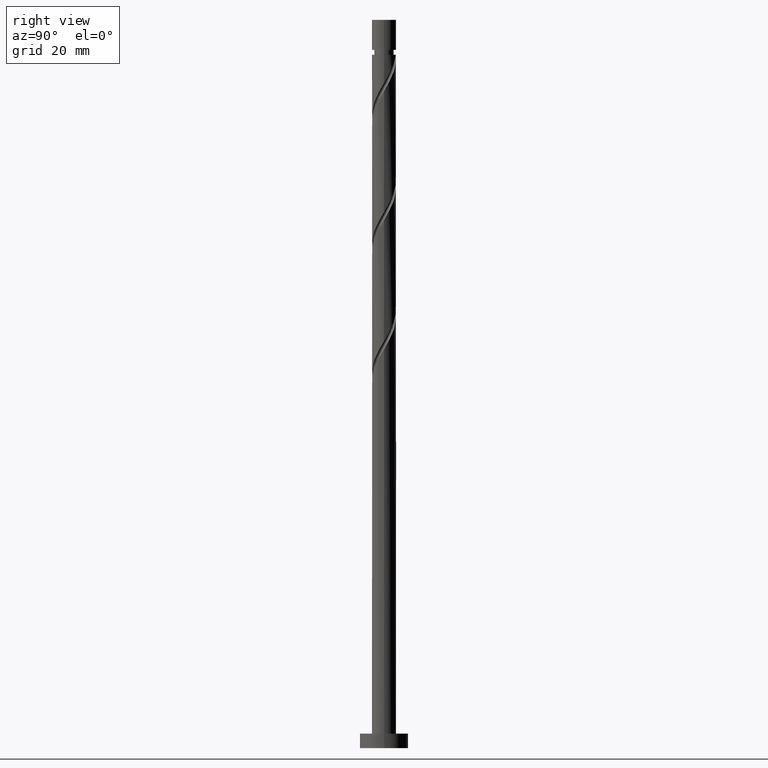
[diagram: clean part render]
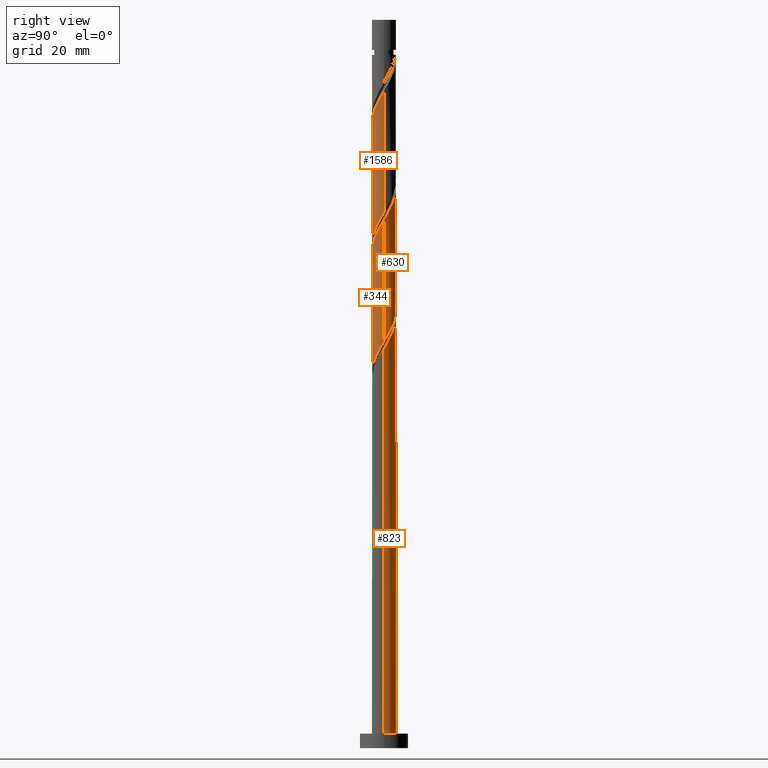
[diagram: same view with one multi-face feature highlighted, each face labeled with its STEP entity id]
A machine part, right view. The highlighted faces form ONE feature: a constant-radius fillet chain: 4 tangent blend faces with common blend radius 2.5 mm. The faces share edges in the B-rep.
Their STEP definitions:
[1] entity #1586 (Cylinder):
#6 = EDGE_LOOP ( 'NONE', ( #1232, #464, #1144, #79 ) ) ;
#70 = CARTESIAN_POINT ( 'NONE',  ( -0.1452368982656269403, -2.521528798126809967, 103.8980615199562578 ) ) ;
#79 = ORIENTED_EDGE ( 'NONE', *, *, #1563, .F. ) ;
#111 = CARTESIAN_POINT ( 'NONE',  ( -2.500000000000003553, -5.795768022604830805E-15, 122.4425464345947745 ) ) ;
#153 = CARTESIAN_POINT ( 'NONE',  ( 2.500000000000000444, 3.484939223914673654E-15, 110.8081220598632228 ) ) ;
#161 = CARTESIAN_POINT ( 'NONE',  ( -2.353996859965338917, -0.9153687888900168268, 99.04957667147137101 ) ) ;
#174 = EDGE_CURVE ( 'NONE', #691, #621, #502, .T. ) ;
#206 = CARTESIAN_POINT ( 'NONE',  ( -2.475193905018191920, -0.5026095591624449854, 123.2920009138956772 ) ) ;
#230 = CARTESIAN_POINT ( 'NONE',  ( 2.500000000000003109, -1.316200221907677803E-15, 135.7758797679281031 ) ) ;
#254 = CARTESIAN_POINT ( 'NONE',  ( 2.500000000000000000, 3.061616997868383141E-16, 150.5000000000000000 ) ) ;
#281 = CARTESIAN_POINT ( 'NONE',  ( -1.743088351060508412, -1.792105744758706098, 100.8677584896532409 ) ) ;
#308 = CARTESIAN_POINT ( 'NONE',  ( 2.021932029057389890, -1.470302985738608958, 108.1404857623805214 ) ) ;
#325 = CARTESIAN_POINT ( 'NONE',  ( -2.177375558832922664, -1.228428132125366279, 99.65563727753202272 ) ) ;
#338 = CARTESIAN_POINT ( 'NONE',  ( -0.5710429720501326578, -2.460307127265380256, 128.1404857623805071 ) ) ;
#350 = CARTESIAN_POINT ( 'NONE',  ( 2.353996859965343358, -0.9153687888900183811, 134.2010918229865695 ) ) ;
#389 = CARTESIAN_POINT ( 'NONE',  ( 1.810534374112176215, -1.761012923450274714, 107.5344251563198839 ) ) ;
#401 = CARTESIAN_POINT ( 'NONE',  ( 0.2129030368922517069, -2.490917962696093557, 104.5041221260168811 ) ) ;
#454 = CARTESIAN_POINT ( 'NONE',  ( -2.495863270706177417, -0.1437585960555965436, 122.6859403078350397 ) ) ;
#464 = ORIENTED_EDGE ( 'NONE', *, *, #1650, .F. ) ;
#475 = DIRECTION ( 'NONE',  ( -0.000000000000000000, -0.000000000000000000, -1.000000000000000000 ) ) ;
#481 = CARTESIAN_POINT ( 'NONE',  ( -2.233329684002606452, -1.179593048026944313, 124.5041221260168811 ) ) ;
#483 =( BOUNDED_CURVE ( )  B_SPLINE_CURVE ( 2, ( #153, #1100, #1053, #1565, #575, #1460, #308, #389, #1062, #524, #1602, #820, #401, #70, #922, #795, #1044, #958, #281, #1299, #325, #161, #1332, #951, #830 ),
 .UNSPECIFIED., .F., .T. ) 
 B_SPLINE_CURVE_WITH_KNOTS ( ( 3, 2, 2, 2, 2, 2, 2, 2, 2, 2, 2, 2, 3 ),
 ( 0.5545252162417511066, 0.5568181818181817677, 0.5681818181818182323, 0.5795454545454545858, 0.5909090909090909394, 0.6022727272727272929, 0.6136363636363636465, 0.6250000000000000000, 0.6363636363636363535, 0.6477272727272727071, 0.6590909090909090606, 0.6704545454545454142, 0.6795252162417514397 ),
 .UNSPECIFIED. ) 
 CURVE ( )  GEOMETRIC_REPRESENTATION_ITEM ( )  RATIONAL_B_SPLINE_CURVE ( ( 0.9061101570135579042, 0.9072237824201401235, 0.9090909090909178314, 0.8998376744372202918, 0.9090909090909178314, 0.8998376744372202918, 0.9090909090909178314, 0.8998376744372202918, 0.9090909090909178314, 0.8998376744372202918, 0.9090909090909178314, 0.8998376744372202918, 0.9090909090909178314, 0.8998376744372202918, 0.9090909090909178314, 0.8998376744372202918, 0.9090909090909178314, 0.8998376744372202918, 0.9090909090909178314, 0.8998376744372202918, 0.9090909090909178314, 0.8998376744372202918, 0.9090909090909178314, 0.9017048011079976666, 0.9061101570135583483 ) ) 
 REPRESENTATION_ITEM ( '' )  );
#493 = CARTESIAN_POINT ( 'NONE',  ( -2.500000000000003997, -0.07193881630955130391, 122.5646444393129713 ) ) ;
#502 = LINE ( 'NONE', #254, #1297 ) ;
#524 = CARTESIAN_POINT ( 'NONE',  ( 1.241060336893708094, -2.199766004962785182, 106.3223039441986515 ) ) ;
#575 = CARTESIAN_POINT ( 'NONE',  ( 2.354261794510395411, -0.8411013035946941496, 109.3526069745017253 ) ) ;
#589 = CARTESIAN_POINT ( 'NONE',  ( 0.4974937185533109263, -2.450000000000003286, 129.9586675805622917 ) ) ;
#604 = CARTESIAN_POINT ( 'NONE',  ( -1.525797355502945152, -1.980389464206532946, 126.3223039441986657 ) ) ;
#621 = VERTEX_POINT ( 'NONE', #1159 ) ;
#671 = FACE_OUTER_BOUND ( 'NONE', #6, .T. ) ;
#691 = VERTEX_POINT ( 'NONE', #1341 ) ;
#711 = CARTESIAN_POINT ( 'NONE',  ( -0.9060516544719220411, -2.330036566114083829, 127.5344251563199123 ) ) ;
#719 = CARTESIAN_POINT ( 'NONE',  ( -1.810534374112179323, -1.761012923450277601, 125.7162433381380851 ) ) ;
#795 = CARTESIAN_POINT ( 'NONE',  ( -0.8497505388409957172, -2.378471201873189500, 102.6859403078350539 ) ) ;
#801 = DIRECTION ( 'NONE',  ( -0.000000000000000000, -0.000000000000000000, -1.000000000000000000 ) ) ;
#820 = CARTESIAN_POINT ( 'NONE',  ( 0.5710429720501314366, -2.460307127265375815, 105.1101827320774618 ) ) ;
#824 = CARTESIAN_POINT ( 'NONE',  ( -2.500000000000003553, -5.795768022604830805E-15, 122.4425464345947887 ) ) ;
#826 = VECTOR ( 'NONE', #475, 1000.000000000000000 ) ;
#830 = CARTESIAN_POINT ( 'NONE',  ( -2.500000000000000444, 9.991156229935629260E-15, 97.47478872652988002 ) ) ;
#837 = DIRECTION ( 'NONE',  ( -0.000000000000000000, -0.000000000000000000, -1.000000000000000000 ) ) ;
#852 = CARTESIAN_POINT ( 'NONE',  ( 0.1452368982656260799, -2.521528798126814408, 129.3526069745017253 ) ) ;
#863 = CARTESIAN_POINT ( 'NONE',  ( 2.435264748179753358, -0.5652305779706354727, 134.8071524290471643 ) ) ;
#872 = CARTESIAN_POINT ( 'NONE',  ( -1.241060336893711424, -2.199766004962788735, 126.9283645502593032 ) ) ;
#922 = CARTESIAN_POINT ( 'NONE',  ( -0.4974937185533113704, -2.449999999999999734, 103.2920009138956488 ) ) ;
#951 = CARTESIAN_POINT ( 'NONE',  ( -2.500000000000000888, -0.2863223184628016504, 97.96074867950116527 ) ) ;
#958 = CARTESIAN_POINT ( 'NONE',  ( -1.485422444420509969, -2.042724014156698242, 101.4738190957138357 ) ) ;
#982 = CARTESIAN_POINT ( 'NONE',  ( 2.000754257700509076, -1.541487475360719062, 132.9889706108653513 ) ) ;
#1000 = CARTESIAN_POINT ( 'NONE',  ( -0.2129030368922531502, -2.490917962696097110, 128.7465463684410736 ) ) ;
#1001 = EDGE_CURVE ( 'NONE', #1132, #1295, #1306, .T. ) ;
#1044 = CARTESIAN_POINT ( 'NONE',  ( -1.167586491630752565, -2.210597608014943649, 102.0798797017744448 ) ) ;
#1053 = CARTESIAN_POINT ( 'NONE',  ( 2.495863270706175197, -0.1437585960555973208, 110.5647281866229292 ) ) ;
#1062 = CARTESIAN_POINT ( 'NONE',  ( 1.525797355502941821, -1.980389464206530281, 106.9283645502592748 ) ) ;
#1100 = CARTESIAN_POINT ( 'NONE',  ( 2.500000000000000444, -0.07193881630955158146, 110.6860240551449976 ) ) ;
#1107 = CARTESIAN_POINT ( 'NONE',  ( 1.743088351060510188, -1.792105744758709429, 132.3829100048046996 ) ) ;
#1132 = VERTEX_POINT ( 'NONE', #824 ) ;
#1144 = ORIENTED_EDGE ( 'NONE', *, *, #1001, .T. ) ;
#1159 = CARTESIAN_POINT ( 'NONE',  ( 2.500000000000000444, 3.484939223914673654E-15, 110.8081220598632228 ) ) ;
#1166 =( BOUNDED_CURVE ( )  B_SPLINE_CURVE ( 2, ( #111, #493, #454, #206, #1640, #481, #1373, #719, #604, #872, #711, #338, #1000, #852, #589, #1364, #1244, #1514, #1107, #982, #1522, #350, #863, #1230, #230 ),
 .UNSPECIFIED., .F., .T. ) 
 B_SPLINE_CURVE_WITH_KNOTS ( ( 3, 2, 2, 2, 2, 2, 2, 2, 2, 2, 2, 2, 3 ),
 ( 0.5545252162417512176, 0.5568181818181818787, 0.5681818181818181213, 0.5795454545454545858, 0.5909090909090908283, 0.6022727272727272929, 0.6136363636363636465, 0.6250000000000000000, 0.6363636363636363535, 0.6477272727272727071, 0.6590909090909091717, 0.6704545454545454142, 0.6795252162417513286 ),
 .UNSPECIFIED. ) 
 CURVE ( )  GEOMETRIC_REPRESENTATION_ITEM ( )  RATIONAL_B_SPLINE_CURVE ( ( 0.9061101570135647876, 0.9072237824201470069, 0.9090909090909247148, 0.8998376744372269531, 0.9090909090909247148, 0.8998376744372269531, 0.9090909090909247148, 0.8998376744372269531, 0.9090909090909247148, 0.8998376744372269531, 0.9090909090909247148, 0.8998376744372269531, 0.9090909090909247148, 0.8998376744372269531, 0.9090909090909247148, 0.8998376744372269531, 0.9090909090909247148, 0.8998376744372269531, 0.9090909090909247148, 0.8998376744372269531, 0.9090909090909247148, 0.8998376744372269531, 0.9090909090909247148, 0.9017048011080045500, 0.9061101570135650096 ) ) 
 REPRESENTATION_ITEM ( '' )  );
#1185 = CYLINDRICAL_SURFACE ( 'NONE', #1386, 2.500000000000000000 ) ;
#1230 = CARTESIAN_POINT ( 'NONE',  ( 2.500000000000003553, -0.2863223184628089779, 135.2899198149568178 ) ) ;
#1232 = ORIENTED_EDGE ( 'NONE', *, *, #174, .F. ) ;
#1244 = CARTESIAN_POINT ( 'NONE',  ( 1.167586491630753454, -2.210597608014947202, 131.1707887926835383 ) ) ;
#1295 = VERTEX_POINT ( 'NONE', #1367 ) ;
#1297 = VECTOR ( 'NONE', #801, 1000.000000000000000 ) ;
#1299 = CARTESIAN_POINT ( 'NONE',  ( -2.000754257700505967, -1.541487475360714621, 100.2616978835926318 ) ) ;
#1306 = LINE ( 'NONE', #1630, #826 ) ;
#1332 = CARTESIAN_POINT ( 'NONE',  ( -2.435264748179748917, -0.5652305779706338074, 98.44351606541080457 ) ) ;
#1341 = CARTESIAN_POINT ( 'NONE',  ( 2.500000000000003109, -1.316200221907677803E-15, 135.7758797679281031 ) ) ;
#1342 = DIRECTION ( 'NONE',  ( -1.000000000000000000, 0.000000000000000000, 0.000000000000000000 ) ) ;
#1364 = CARTESIAN_POINT ( 'NONE',  ( 0.8497505388409963833, -2.378471201873193941, 130.5647281866229434 ) ) ;
#1367 = CARTESIAN_POINT ( 'NONE',  ( -2.500000000000000444, 9.991156229935629260E-15, 97.47478872652988002 ) ) ;
#1373 = CARTESIAN_POINT ( 'NONE',  ( -2.021932029057392555, -1.470302985738610735, 125.1101827320774476 ) ) ;
#1386 = AXIS2_PLACEMENT_3D ( 'NONE', #1470, #837, #1342 ) ;
#1460 = CARTESIAN_POINT ( 'NONE',  ( 2.233329684002602455, -1.179593048026942759, 108.7465463684411020 ) ) ;
#1470 = CARTESIAN_POINT ( 'NONE',  ( 0.000000000000000000, 0.000000000000000000, 150.5000000000000000 ) ) ;
#1514 = CARTESIAN_POINT ( 'NONE',  ( 1.485422444420512189, -2.042724014156700907, 131.7768493987441332 ) ) ;
#1522 = CARTESIAN_POINT ( 'NONE',  ( 2.177375558832926217, -1.228428132125369387, 133.5950312169259178 ) ) ;
#1563 = EDGE_CURVE ( 'NONE', #621, #1295, #483, .T. ) ;
#1565 = CARTESIAN_POINT ( 'NONE',  ( 2.475193905018188367, -0.5026095591624450964, 109.9586675805623059 ) ) ;
#1586 = ADVANCED_FACE ( 'NONE', ( #671 ), #1185, .T. ) ;
#1602 = CARTESIAN_POINT ( 'NONE',  ( 0.9060516544719195986, -2.330036566114080276, 105.7162433381380708 ) ) ;
#1630 = CARTESIAN_POINT ( 'NONE',  ( -2.500000000000000000, 0.000000000000000000, 150.5000000000000000 ) ) ;
#1640 = CARTESIAN_POINT ( 'NONE',  ( -2.354261794510398964, -0.8411013035946942606, 123.8980615199562436 ) ) ;
#1650 = EDGE_CURVE ( 'NONE', #1132, #691, #1166, .T. ) ;
[2] entity #630 (Cylinder):
#13 = CYLINDRICAL_SURFACE ( 'NONE', #1021, 2.500000000000000000 ) ;
#19 = CARTESIAN_POINT ( 'NONE',  ( -1.241060336893708538, 2.199766004962784738, 92.98897061086537974 ) ) ;
#29 = CARTESIAN_POINT ( 'NONE',  ( 2.500000000000000444, 3.484939223914673654E-15, 84.14145539319656564 ) ) ;
#61 = CARTESIAN_POINT ( 'NONE',  ( 2.353996859965339805, 0.9153687888900154945, 85.71624333813808505 ) ) ;
#78 = CARTESIAN_POINT ( 'NONE',  ( -2.435264748179753358, 0.5652305779706355837, 121.4738190957138215 ) ) ;
#103 = CARTESIAN_POINT ( 'NONE',  ( 0.2129030368922534833, 2.490917962696097554, 115.4132130351077734 ) ) ;
#128 = ORIENTED_EDGE ( 'NONE', *, *, #409, .T. ) ;
#145 = CARTESIAN_POINT ( 'NONE',  ( -0.9060516544719195986, 2.330036566114080276, 92.38291000480478488 ) ) ;
#185 = VECTOR ( 'NONE', #480, 1000.000000000000000 ) ;
#194 = CARTESIAN_POINT ( 'NONE',  ( 1.167586491630753009, 2.210597608014943205, 88.74654636844113043 ) ) ;
#217 = CARTESIAN_POINT ( 'NONE',  ( 1.810534374112180434, 1.761012923450276935, 112.3829100048047138 ) ) ;
#236 = CARTESIAN_POINT ( 'NONE',  ( -2.353996859965342914, 0.9153687888900192693, 120.8677584896532551 ) ) ;
#263 = CARTESIAN_POINT ( 'NONE',  ( 2.500000000000003109, 2.191174233062213370E-15, 109.1092131012614317 ) ) ;
#274 = CARTESIAN_POINT ( 'NONE',  ( -0.2129030368922524008, 2.490917962696093557, 91.17078879268353830 ) ) ;
#277 = CARTESIAN_POINT ( 'NONE',  ( 0.000000000000000000, 0.000000000000000000, 150.5000000000000000 ) ) ;
#317 = CARTESIAN_POINT ( 'NONE',  ( 2.177375558832922220, 1.228428132125366723, 86.32230394419867991 ) ) ;
#343 = CARTESIAN_POINT ( 'NONE',  ( -1.485422444420512189, 2.042724014156701351, 118.4435160654108330 ) ) ;
#359 = CARTESIAN_POINT ( 'NONE',  ( -1.743088351060510188, 1.792105744758709429, 119.0495766714713994 ) ) ;
#409 = EDGE_CURVE ( 'NONE', #1515, #1049, #1485, .T. ) ;
#430 = CARTESIAN_POINT ( 'NONE',  ( 0.8497505388409958282, 2.378471201873189056, 89.35260697450166845 ) ) ;
#440 = CARTESIAN_POINT ( 'NONE',  ( 1.743088351060507524, 1.792105744758706543, 87.53442515631989806 ) ) ;
#446 = CARTESIAN_POINT ( 'NONE',  ( 0.4974937185533115924, 2.449999999999999734, 89.95866758056232015 ) ) ;
#463 = CARTESIAN_POINT ( 'NONE',  ( 2.233329684002606896, 1.179593048026943647, 111.1707887926835099 ) ) ;
#475 = DIRECTION ( 'NONE',  ( -0.000000000000000000, -0.000000000000000000, -1.000000000000000000 ) ) ;
#480 = DIRECTION ( 'NONE',  ( -0.000000000000000000, -0.000000000000000000, -1.000000000000000000 ) ) ;
#510 = DIRECTION ( 'NONE',  ( -1.000000000000000000, 0.000000000000000000, 0.000000000000000000 ) ) ;
#532 = CARTESIAN_POINT ( 'NONE',  ( 2.500000000000000444, 0.2863223184628042595, 84.62741534616783667 ) ) ;
#543 = CARTESIAN_POINT ( 'NONE',  ( 2.500000000000003997, 0.07193881630954691853, 109.2313111059796427 ) ) ;
#582 = CARTESIAN_POINT ( 'NONE',  ( -2.475193905018188367, 0.5026095591624447634, 96.62533424722896314 ) ) ;
#610 = CARTESIAN_POINT ( 'NONE',  ( 0.9060516544719209309, 2.330036566114084273, 114.2010918229865553 ) ) ;
#620 = CARTESIAN_POINT ( 'NONE',  ( 2.021932029057392999, 1.470302985738610069, 111.7768493987441332 ) ) ;
#630 = ADVANCED_FACE ( 'NONE', ( #769 ), #13, .T. ) ;
#660 = CARTESIAN_POINT ( 'NONE',  ( 0.1452368982656262741, 2.521528798126809967, 90.56472818662290081 ) ) ;
#696 = CARTESIAN_POINT ( 'NONE',  ( 2.354261794510398964, 0.8411013035946940386, 110.5647281866229150 ) ) ;
#702 = CARTESIAN_POINT ( 'NONE',  ( 2.495863270706177417, 0.1437585960555962661, 109.3526069745017253 ) ) ;
#741 = CARTESIAN_POINT ( 'NONE',  ( -0.1452368982656258023, 2.521528798126814408, 116.0192736411683967 ) ) ;
#761 = EDGE_LOOP ( 'NONE', ( #892, #128, #1418, #1040 ) ) ;
#769 = FACE_OUTER_BOUND ( 'NONE', #761, .T. ) ;
#775 = CARTESIAN_POINT ( 'NONE',  ( -2.500000000000000000, 0.07193881630956162898, 97.35269072181166905 ) ) ;
#786 = CARTESIAN_POINT ( 'NONE',  ( 2.435264748179749805, 0.5652305779706332522, 85.11018273207747598 ) ) ;
#824 = CARTESIAN_POINT ( 'NONE',  ( -2.500000000000003553, -5.795768022604830805E-15, 122.4425464345947887 ) ) ;
#826 = VECTOR ( 'NONE', #475, 1000.000000000000000 ) ;
#892 = ORIENTED_EDGE ( 'NONE', *, *, #1603, .F. ) ;
#966 = CARTESIAN_POINT ( 'NONE',  ( -1.810534374112175993, 1.761012923450275158, 94.20109182298656947 ) ) ;
#981 = CARTESIAN_POINT ( 'NONE',  ( 2.500000000000000000, 3.061616997868383141E-16, 150.5000000000000000 ) ) ;
#992 = CARTESIAN_POINT ( 'NONE',  ( -2.177375558832926217, 1.228428132125368499, 120.2616978835926176 ) ) ;
#995 =( BOUNDED_CURVE ( )  B_SPLINE_CURVE ( 2, ( #1411, #775, #1432, #582, #1609, #1092, #1424, #966, #1173, #19, #145, #1164, #274, #660, #446, #430, #194, #1478, #440, #1577, #317, #61, #786, #532, #29 ),
 .UNSPECIFIED., .F., .T. ) 
 B_SPLINE_CURVE_WITH_KNOTS ( ( 3, 2, 2, 2, 2, 2, 2, 2, 2, 2, 2, 2, 3 ),
 ( 0.6795252162417514397, 0.6818181818181817677, 0.6931818181818182323, 0.7045454545454545858, 0.7159090909090909394, 0.7272727272727272929, 0.7386363636363636465, 0.7500000000000000000, 0.7613636363636363535, 0.7727272727272727071, 0.7840909090909090606, 0.7954545454545454142, 0.8045252162417513286 ),
 .UNSPECIFIED. ) 
 CURVE ( )  GEOMETRIC_REPRESENTATION_ITEM ( )  RATIONAL_B_SPLINE_CURVE ( ( 0.9061101570135583483, 0.9072237824201404566, 0.9090909090909178314, 0.8998376744372202918, 0.9090909090909178314, 0.8998376744372202918, 0.9090909090909178314, 0.8998376744372202918, 0.9090909090909178314, 0.8998376744372202918, 0.9090909090909178314, 0.8998376744372202918, 0.9090909090909178314, 0.8998376744372202918, 0.9090909090909178314, 0.8998376744372202918, 0.9090909090909178314, 0.8998376744372202918, 0.9090909090909178314, 0.8998376744372202918, 0.9090909090909178314, 0.8998376744372202918, 0.9090909090909178314, 0.9017048011079977776, 0.9061101570135583483 ) ) 
 REPRESENTATION_ITEM ( '' )  );
#1001 = EDGE_CURVE ( 'NONE', #1132, #1295, #1306, .T. ) ;
#1008 = CARTESIAN_POINT ( 'NONE',  ( 0.5710429720501329909, 2.460307127265380256, 114.8071524290471785 ) ) ;
#1021 = AXIS2_PLACEMENT_3D ( 'NONE', #277, #1027, #510 ) ;
#1027 = DIRECTION ( 'NONE',  ( -0.000000000000000000, -0.000000000000000000, -1.000000000000000000 ) ) ;
#1040 = ORIENTED_EDGE ( 'NONE', *, *, #1001, .F. ) ;
#1049 = VERTEX_POINT ( 'NONE', #1624 ) ;
#1092 = CARTESIAN_POINT ( 'NONE',  ( -2.233329684002602455, 1.179593048026942981, 95.41321303510777341 ) ) ;
#1132 = VERTEX_POINT ( 'NONE', #824 ) ;
#1137 = CARTESIAN_POINT ( 'NONE',  ( 1.525797355502944486, 1.980389464206532946, 112.9889706108653229 ) ) ;
#1164 = CARTESIAN_POINT ( 'NONE',  ( -0.5710429720501312145, 2.460307127265375371, 91.77684939874411896 ) ) ;
#1173 = CARTESIAN_POINT ( 'NONE',  ( -1.525797355502942043, 1.980389464206530281, 93.59503121692596039 ) ) ;
#1216 = CARTESIAN_POINT ( 'NONE',  ( 2.475193905018191920, 0.5026095591624447634, 109.9586675805623344 ) ) ;
#1221 = CARTESIAN_POINT ( 'NONE',  ( -0.4974937185533107042, 2.450000000000003286, 116.6253342472289631 ) ) ;
#1237 = CARTESIAN_POINT ( 'NONE',  ( -2.500000000000003553, -5.795768022604830805E-15, 122.4425464345947745 ) ) ;
#1295 = VERTEX_POINT ( 'NONE', #1367 ) ;
#1306 = LINE ( 'NONE', #1630, #826 ) ;
#1356 = CARTESIAN_POINT ( 'NONE',  ( 1.241060336893710314, 2.199766004962788735, 113.5950312169259746 ) ) ;
#1367 = CARTESIAN_POINT ( 'NONE',  ( -2.500000000000000444, 9.991156229935629260E-15, 97.47478872652988002 ) ) ;
#1411 = CARTESIAN_POINT ( 'NONE',  ( -2.500000000000000444, 9.991156229935629260E-15, 97.47478872652988002 ) ) ;
#1418 = ORIENTED_EDGE ( 'NONE', *, *, #1534, .F. ) ;
#1424 = CARTESIAN_POINT ( 'NONE',  ( -2.021932029057389890, 1.470302985738608958, 94.80715242904716433 ) ) ;
#1432 = CARTESIAN_POINT ( 'NONE',  ( -2.495863270706175197, 0.1437585960555969877, 97.23139485328962905 ) ) ;
#1478 = CARTESIAN_POINT ( 'NONE',  ( 1.485422444420510191, 2.042724014156697798, 88.14048576238050714 ) ) ;
#1485 = LINE ( 'NONE', #981, #185 ) ;
#1486 = CARTESIAN_POINT ( 'NONE',  ( -2.000754257700509520, 1.541487475360718618, 119.6556372775320369 ) ) ;
#1506 = CARTESIAN_POINT ( 'NONE',  ( -0.8497505388409966054, 2.378471201873193497, 117.2313948532896006 ) ) ;
#1515 = VERTEX_POINT ( 'NONE', #263 ) ;
#1534 = EDGE_CURVE ( 'NONE', #1295, #1049, #995, .T. ) ;
#1555 = CARTESIAN_POINT ( 'NONE',  ( 2.500000000000003109, 2.191174233062213370E-15, 109.1092131012614317 ) ) ;
#1577 = CARTESIAN_POINT ( 'NONE',  ( 2.000754257700505523, 1.541487475360715509, 86.92836455025927478 ) ) ;
#1589 =( BOUNDED_CURVE ( )  B_SPLINE_CURVE ( 2, ( #1555, #543, #702, #1216, #696, #463, #620, #217, #1137, #1356, #610, #1008, #103, #741, #1221, #1506, #1616, #343, #359, #1486, #992, #236, #78, #1649, #1237 ),
 .UNSPECIFIED., .F., .T. ) 
 B_SPLINE_CURVE_WITH_KNOTS ( ( 3, 2, 2, 2, 2, 2, 2, 2, 2, 2, 2, 2, 3 ),
 ( 0.4295252162417509956, 0.4318181818181817677, 0.4431818181818182323, 0.4545454545454545858, 0.4659090909090909394, 0.4772727272727272929, 0.4886363636363636465, 0.5000000000000000000, 0.5113636363636363535, 0.5227272727272727071, 0.5340909090909091717, 0.5454545454545454142, 0.5545252162417512176 ),
 .UNSPECIFIED. ) 
 CURVE ( )  GEOMETRIC_REPRESENTATION_ITEM ( )  RATIONAL_B_SPLINE_CURVE ( ( 0.9061101570135647876, 0.9072237824201470069, 0.9090909090909247148, 0.8998376744372269531, 0.9090909090909247148, 0.8998376744372269531, 0.9090909090909247148, 0.8998376744372269531, 0.9090909090909247148, 0.8998376744372269531, 0.9090909090909247148, 0.8998376744372269531, 0.9090909090909247148, 0.8998376744372269531, 0.9090909090909247148, 0.8998376744372269531, 0.9090909090909247148, 0.8998376744372269531, 0.9090909090909247148, 0.8998376744372269531, 0.9090909090909247148, 0.8998376744372269531, 0.9090909090909247148, 0.9017048011080046610, 0.9061101570135647876 ) ) 
 REPRESENTATION_ITEM ( '' )  );
#1603 = EDGE_CURVE ( 'NONE', #1515, #1132, #1589, .T. ) ;
#1609 = CARTESIAN_POINT ( 'NONE',  ( -2.354261794510395855, 0.8411013035946938166, 96.01927364116838248 ) ) ;
#1616 = CARTESIAN_POINT ( 'NONE',  ( -1.167586491630754342, 2.210597608014947202, 117.8374554593502097 ) ) ;
#1624 = CARTESIAN_POINT ( 'NONE',  ( 2.500000000000000444, 3.484939223914673654E-15, 84.14145539319656564 ) ) ;
#1630 = CARTESIAN_POINT ( 'NONE',  ( -2.500000000000000000, 0.000000000000000000, 150.5000000000000000 ) ) ;
#1649 = CARTESIAN_POINT ( 'NONE',  ( -2.500000000000002665, 0.2863223184628125306, 121.9565864816234608 ) ) ;
[3] entity #344 (Cylinder):
#23 = CARTESIAN_POINT ( 'NONE',  ( -1.810534374112179323, -1.761012923450277601, 99.04957667147138523 ) ) ;
#27 = CARTESIAN_POINT ( 'NONE',  ( -2.500000000000000444, 9.991156229935629260E-15, 70.80812205986319441 ) ) ;
#34 = CARTESIAN_POINT ( 'NONE',  ( 0.1452368982656260799, -2.521528798126814408, 102.6859403078350397 ) ) ;
#48 = EDGE_CURVE ( 'NONE', #1049, #150, #201, .T. ) ;
#90 = ORIENTED_EDGE ( 'NONE', *, *, #409, .F. ) ;
#105 = CARTESIAN_POINT ( 'NONE',  ( 2.500000000000000444, 3.484939223914673654E-15, 84.14145539319656564 ) ) ;
#126 = CARTESIAN_POINT ( 'NONE',  ( 1.743088351060510188, -1.792105744758709429, 105.7162433381380708 ) ) ;
#150 = VERTEX_POINT ( 'NONE', #1661 ) ;
#172 = LINE ( 'NONE', #682, #1080 ) ;
#185 = VECTOR ( 'NONE', #480, 1000.000000000000000 ) ;
#201 =( BOUNDED_CURVE ( )  B_SPLINE_CURVE ( 2, ( #105, #224, #1375, #730, #237, #484, #1239, #361, #605, #1123, #1629, #1253, #472, #994, #1509, #345, #866, #752, #737, #1245, #1002, #885, #1542, #388, #27 ),
 .UNSPECIFIED., .F., .T. ) 
 B_SPLINE_CURVE_WITH_KNOTS ( ( 3, 2, 2, 2, 2, 2, 2, 2, 2, 2, 2, 2, 3 ),
 ( 0.8045252162417513286, 0.8068181818181817677, 0.8181818181818182323, 0.8295454545454545858, 0.8409090909090909394, 0.8522727272727272929, 0.8636363636363636465, 0.8750000000000000000, 0.8863636363636363535, 0.8977272727272727071, 0.9090909090909090606, 0.9204545454545454142, 0.9295252162417513286 ),
 .UNSPECIFIED. ) 
 CURVE ( )  GEOMETRIC_REPRESENTATION_ITEM ( )  RATIONAL_B_SPLINE_CURVE ( ( 0.9061101570135583483, 0.9072237824201403456, 0.9090909090909178314, 0.8998376744372202918, 0.9090909090909178314, 0.8998376744372202918, 0.9090909090909178314, 0.8998376744372202918, 0.9090909090909178314, 0.8998376744372202918, 0.9090909090909178314, 0.8998376744372202918, 0.9090909090909178314, 0.8998376744372202918, 0.9090909090909178314, 0.8998376744372202918, 0.9090909090909178314, 0.8998376744372202918, 0.9090909090909178314, 0.8998376744372202918, 0.9090909090909178314, 0.8998376744372202918, 0.9090909090909178314, 0.9017048011079977776, 0.9061101570135583483 ) ) 
 REPRESENTATION_ITEM ( '' )  );
#205 = CYLINDRICAL_SURFACE ( 'NONE', #1182, 2.500000000000000000 ) ;
#224 = CARTESIAN_POINT ( 'NONE',  ( 2.500000000000000444, -0.07193881630955856199, 84.01935738847834045 ) ) ;
#237 = CARTESIAN_POINT ( 'NONE',  ( 2.354261794510395411, -0.8411013035946941496, 82.68594030783505389 ) ) ;
#251 = CARTESIAN_POINT ( 'NONE',  ( -2.495863270706177417, -0.1437585960555965436, 96.01927364116838248 ) ) ;
#263 = CARTESIAN_POINT ( 'NONE',  ( 2.500000000000003109, 2.191174233062213370E-15, 109.1092131012614317 ) ) ;
#268 = CARTESIAN_POINT ( 'NONE',  ( 2.000754257700509076, -1.541487475360719062, 106.3223039441986657 ) ) ;
#332 = EDGE_LOOP ( 'NONE', ( #90, #471, #549, #771 ) ) ;
#344 = ADVANCED_FACE ( 'NONE', ( #1347 ), #205, .T. ) ;
#345 = CARTESIAN_POINT ( 'NONE',  ( -0.8497505388409957172, -2.378471201873189500, 76.01927364116838248 ) ) ;
#361 = CARTESIAN_POINT ( 'NONE',  ( 1.810534374112176215, -1.761012923450274714, 80.86775848965319824 ) ) ;
#383 = CARTESIAN_POINT ( 'NONE',  ( -2.500000000000003109, -0.07193881630956454332, 95.89797777264634249 ) ) ;
#388 = CARTESIAN_POINT ( 'NONE',  ( -2.499999999999999556, -0.2863223184628050366, 71.29408201283447966 ) ) ;
#405 = CARTESIAN_POINT ( 'NONE',  ( -0.9060516544719220411, -2.330036566114083829, 100.8677584896532267 ) ) ;
#409 = EDGE_CURVE ( 'NONE', #1515, #1049, #1485, .T. ) ;
#453 = DIRECTION ( 'NONE',  ( -0.000000000000000000, -0.000000000000000000, -1.000000000000000000 ) ) ;
#462 = DIRECTION ( 'NONE',  ( -1.000000000000000000, 0.000000000000000000, 0.000000000000000000 ) ) ;
#471 = ORIENTED_EDGE ( 'NONE', *, *, #561, .F. ) ;
#472 = CARTESIAN_POINT ( 'NONE',  ( 0.2129030368922517069, -2.490917962696093557, 77.83745545935019550 ) ) ;
#480 = DIRECTION ( 'NONE',  ( -0.000000000000000000, -0.000000000000000000, -1.000000000000000000 ) ) ;
#484 = CARTESIAN_POINT ( 'NONE',  ( 2.233329684002602455, -1.179593048026942759, 82.07987970177441639 ) ) ;
#527 = CARTESIAN_POINT ( 'NONE',  ( 2.500000000000001776, -0.2863223184628164719, 108.6232531482901038 ) ) ;
#538 = CARTESIAN_POINT ( 'NONE',  ( 2.435264748179753358, -0.5652305779706354727, 108.1404857623805071 ) ) ;
#549 = ORIENTED_EDGE ( 'NONE', *, *, #853, .T. ) ;
#561 = EDGE_CURVE ( 'NONE', #1019, #1515, #721, .T. ) ;
#585 = CARTESIAN_POINT ( 'NONE',  ( -2.500000000000003109, -2.295871977986687745E-15, 95.77587976792811730 ) ) ;
#605 = CARTESIAN_POINT ( 'NONE',  ( 1.525797355502941821, -1.980389464206530281, 80.26169788359263180 ) ) ;
#628 = CARTESIAN_POINT ( 'NONE',  ( -2.021932029057392555, -1.470302985738610735, 98.44351606541077615 ) ) ;
#636 = CARTESIAN_POINT ( 'NONE',  ( -1.525797355502945152, -1.980389464206532946, 99.65563727753199430 ) ) ;
#654 = CARTESIAN_POINT ( 'NONE',  ( 0.4974937185533109263, -2.450000000000003286, 103.2920009138956488 ) ) ;
#664 = CARTESIAN_POINT ( 'NONE',  ( -2.475193905018191920, -0.5026095591624449854, 96.62533424722899156 ) ) ;
#682 = CARTESIAN_POINT ( 'NONE',  ( -2.500000000000000000, 0.000000000000000000, 150.5000000000000000 ) ) ;
#721 =( BOUNDED_CURVE ( )  B_SPLINE_CURVE ( 2, ( #1168, #383, #251, #664, #891, #897, #628, #23, #636, #1396, #405, #1142, #1405, #34, #654, #1264, #1293, #1416, #126, #268, #1150, #1176, #538, #527, #779 ),
 .UNSPECIFIED., .F., .T. ) 
 B_SPLINE_CURVE_WITH_KNOTS ( ( 3, 2, 2, 2, 2, 2, 2, 2, 2, 2, 2, 2, 3 ),
 ( 0.3045252162417515507, 0.3068181818181817677, 0.3181818181818182323, 0.3295454545454545858, 0.3409090909090909394, 0.3522727272727272929, 0.3636363636363636465, 0.3750000000000000000, 0.3863636363636363535, 0.3977272727272727071, 0.4090909090909090606, 0.4204545454545454142, 0.4295252162417509956 ),
 .UNSPECIFIED. ) 
 CURVE ( )  GEOMETRIC_REPRESENTATION_ITEM ( )  RATIONAL_B_SPLINE_CURVE ( ( 0.9061101570135652317, 0.9072237824201474510, 0.9090909090909247148, 0.8998376744372269531, 0.9090909090909247148, 0.8998376744372269531, 0.9090909090909247148, 0.8998376744372269531, 0.9090909090909247148, 0.8998376744372269531, 0.9090909090909247148, 0.8998376744372269531, 0.9090909090909247148, 0.8998376744372269531, 0.9090909090909247148, 0.8998376744372269531, 0.9090909090909247148, 0.8998376744372269531, 0.9090909090909247148, 0.8998376744372269531, 0.9090909090909247148, 0.8998376744372269531, 0.9090909090909247148, 0.9017048011080046610, 0.9061101570135647876 ) ) 
 REPRESENTATION_ITEM ( '' )  );
#730 = CARTESIAN_POINT ( 'NONE',  ( 2.475193905018188367, -0.5026095591624450964, 83.29200091389566296 ) ) ;
#737 = CARTESIAN_POINT ( 'NONE',  ( -1.743088351060508412, -1.792105744758706098, 74.20109182298656947 ) ) ;
#752 = CARTESIAN_POINT ( 'NONE',  ( -1.485422444420509969, -2.042724014156698242, 74.80715242904716433 ) ) ;
#771 = ORIENTED_EDGE ( 'NONE', *, *, #48, .F. ) ;
#779 = CARTESIAN_POINT ( 'NONE',  ( 2.500000000000003109, 2.191174233062213370E-15, 109.1092131012614317 ) ) ;
#853 = EDGE_CURVE ( 'NONE', #1019, #150, #172, .T. ) ;
#862 = CARTESIAN_POINT ( 'NONE',  ( 0.000000000000000000, 0.000000000000000000, 150.5000000000000000 ) ) ;
#866 = CARTESIAN_POINT ( 'NONE',  ( -1.167586491630752565, -2.210597608014943649, 75.41321303510780183 ) ) ;
#885 = CARTESIAN_POINT ( 'NONE',  ( -2.353996859965338917, -0.9153687888900168268, 72.38291000480472803 ) ) ;
#891 = CARTESIAN_POINT ( 'NONE',  ( -2.354261794510398964, -0.8411013035946942606, 97.23139485328960063 ) ) ;
#897 = CARTESIAN_POINT ( 'NONE',  ( -2.233329684002606452, -1.179593048026944313, 97.83745545935018129 ) ) ;
#981 = CARTESIAN_POINT ( 'NONE',  ( 2.500000000000000000, 3.061616997868383141E-16, 150.5000000000000000 ) ) ;
#994 = CARTESIAN_POINT ( 'NONE',  ( -0.1452368982656269403, -2.521528798126809967, 77.23139485328960063 ) ) ;
#1002 = CARTESIAN_POINT ( 'NONE',  ( -2.177375558832922664, -1.228428132125366279, 72.98897061086536553 ) ) ;
#1019 = VERTEX_POINT ( 'NONE', #585 ) ;
#1049 = VERTEX_POINT ( 'NONE', #1624 ) ;
#1080 = VECTOR ( 'NONE', #1197, 1000.000000000000000 ) ;
#1123 = CARTESIAN_POINT ( 'NONE',  ( 1.241060336893708094, -2.199766004962785182, 79.65563727753200851 ) ) ;
#1142 = CARTESIAN_POINT ( 'NONE',  ( -0.5710429720501326578, -2.460307127265380256, 101.4738190957138499 ) ) ;
#1150 = CARTESIAN_POINT ( 'NONE',  ( 2.177375558832926217, -1.228428132125369387, 106.9283645502592748 ) ) ;
#1168 = CARTESIAN_POINT ( 'NONE',  ( -2.500000000000003109, -2.295871977986687351E-15, 95.77587976792811730 ) ) ;
#1176 = CARTESIAN_POINT ( 'NONE',  ( 2.353996859965343358, -0.9153687888900183811, 107.5344251563198696 ) ) ;
#1182 = AXIS2_PLACEMENT_3D ( 'NONE', #862, #453, #462 ) ;
#1197 = DIRECTION ( 'NONE',  ( -0.000000000000000000, -0.000000000000000000, -1.000000000000000000 ) ) ;
#1239 = CARTESIAN_POINT ( 'NONE',  ( 2.021932029057389890, -1.470302985738608958, 81.47381909571382153 ) ) ;
#1245 = CARTESIAN_POINT ( 'NONE',  ( -2.000754257700505967, -1.541487475360714621, 73.59503121692594618 ) ) ;
#1253 = CARTESIAN_POINT ( 'NONE',  ( 0.5710429720501314366, -2.460307127265375815, 78.44351606541079036 ) ) ;
#1264 = CARTESIAN_POINT ( 'NONE',  ( 0.8497505388409963833, -2.378471201873193941, 103.8980615199562720 ) ) ;
#1293 = CARTESIAN_POINT ( 'NONE',  ( 1.167586491630753454, -2.210597608014947202, 104.5041221260168527 ) ) ;
#1347 = FACE_OUTER_BOUND ( 'NONE', #332, .T. ) ;
#1375 = CARTESIAN_POINT ( 'NONE',  ( 2.495863270706175197, -0.1437585960555973208, 83.89806151995628625 ) ) ;
#1396 = CARTESIAN_POINT ( 'NONE',  ( -1.241060336893711424, -2.199766004962788735, 100.2616978835926176 ) ) ;
#1405 = CARTESIAN_POINT ( 'NONE',  ( -0.2129030368922531502, -2.490917962696097110, 102.0798797017744306 ) ) ;
#1416 = CARTESIAN_POINT ( 'NONE',  ( 1.485422444420512189, -2.042724014156700907, 105.1101827320774618 ) ) ;
#1485 = LINE ( 'NONE', #981, #185 ) ;
#1509 = CARTESIAN_POINT ( 'NONE',  ( -0.4974937185533113704, -2.449999999999999734, 76.62533424722899156 ) ) ;
#1515 = VERTEX_POINT ( 'NONE', #263 ) ;
#1542 = CARTESIAN_POINT ( 'NONE',  ( -2.435264748179748917, -0.5652305779706338074, 71.77684939874414738 ) ) ;
#1624 = CARTESIAN_POINT ( 'NONE',  ( 2.500000000000000444, 3.484939223914673654E-15, 84.14145539319656564 ) ) ;
#1629 = CARTESIAN_POINT ( 'NONE',  ( 0.9060516544719195986, -2.330036566114080276, 79.04957667147141365 ) ) ;
#1661 = CARTESIAN_POINT ( 'NONE',  ( -2.500000000000000444, 9.991156229935629260E-15, 70.80812205986319441 ) ) ;
[4] entity #823 (Cylinder):
#51 = CARTESIAN_POINT ( 'NONE',  ( 2.500000000000003109, 2.191174233062213370E-15, 82.44254643459476029 ) ) ;
#52 = CARTESIAN_POINT ( 'NONE',  ( -1.241060336893708538, 2.199766004962784738, 66.32230394419869413 ) ) ;
#60 = CARTESIAN_POINT ( 'NONE',  ( -2.495863270706175197, 0.1437585960555969877, 70.56472818662291502 ) ) ;
#80 = VECTOR ( 'NONE', #1363, 1000.000000000000000 ) ;
#92 = EDGE_CURVE ( 'NONE', #631, #918, #1094, .T. ) ;
#93 = CARTESIAN_POINT ( 'NONE',  ( -0.4974937185533107042, 2.450000000000003286, 89.95866758056230594 ) ) ;
#99 = CARTESIAN_POINT ( 'NONE',  ( 1.525797355502944486, 1.980389464206532946, 86.32230394419863728 ) ) ;
#113 = CARTESIAN_POINT ( 'NONE',  ( -1.485422444420512189, 2.042724014156701351, 65.11018273207749019 ) ) ;
#119 = ORIENTED_EDGE ( 'NONE', *, *, #353, .F. ) ;
#132 = CARTESIAN_POINT ( 'NONE',  ( 2.500000000000000000, 3.061616997868383141E-16, 150.5000000000000000 ) ) ;
#140 = ORIENTED_EDGE ( 'NONE', *, *, #92, .T. ) ;
#150 = VERTEX_POINT ( 'NONE', #1661 ) ;
#172 = LINE ( 'NONE', #682, #1080 ) ;
#183 = CARTESIAN_POINT ( 'NONE',  ( 2.495863270706177417, 0.1437585960555962661, 82.68594030783503968 ) ) ;
#198 = CARTESIAN_POINT ( 'NONE',  ( 0.2129030368922534833, 2.490917962696097554, 88.74654636844108779 ) ) ;
#253 = VERTEX_POINT ( 'NONE', #1051 ) ;
#292 = CARTESIAN_POINT ( 'NONE',  ( 0.000000000000000000, 0.000000000000000000, 150.5000000000000000 ) ) ;
#298 = FACE_OUTER_BOUND ( 'NONE', #597, .T. ) ;
#310 = EDGE_CURVE ( 'NONE', #150, #253, #1625, .T. ) ;
#322 = CARTESIAN_POINT ( 'NONE',  ( 0.5710429720501329909, 2.460307127265380256, 88.14048576238049293 ) ) ;
#347 = CARTESIAN_POINT ( 'NONE',  ( 0.000000000000000000, 0.000000000000000000, 63.29200091389565586 ) ) ;
#353 = EDGE_CURVE ( 'NONE', #984, #918, #710, .T. ) ;
#360 =( BOUNDED_CURVE ( )  B_SPLINE_CURVE ( 2, ( #51, #564, #183, #695, #1209, #438, #957, #960, #99, #432, #1233, #322, #198, #584, #93, #599, #456, #1102, #1116, #1611, #859, #448, #953, #1463, #969 ),
 .UNSPECIFIED., .F., .T. ) 
 B_SPLINE_CURVE_WITH_KNOTS ( ( 3, 2, 2, 2, 2, 2, 2, 2, 2, 2, 2, 2, 3 ),
 ( 0.1795252162417513564, 0.1818181818181817677, 0.1931818181818182323, 0.2045454545454545858, 0.2159090909090909394, 0.2272727272727272929, 0.2386363636363636465, 0.2500000000000000000, 0.2613636363636363535, 0.2727272727272727071, 0.2840909090909090606, 0.2954545454545454142, 0.3045252162417515507 ),
 .UNSPECIFIED. ) 
 CURVE ( )  GEOMETRIC_REPRESENTATION_ITEM ( )  RATIONAL_B_SPLINE_CURVE ( ( 0.9061101570135650096, 0.9072237824201472289, 0.9090909090909247148, 0.8998376744372269531, 0.9090909090909247148, 0.8998376744372269531, 0.9090909090909247148, 0.8998376744372269531, 0.9090909090909247148, 0.8998376744372269531, 0.9090909090909247148, 0.8998376744372269531, 0.9090909090909247148, 0.8998376744372269531, 0.9090909090909247148, 0.8998376744372269531, 0.9090909090909247148, 0.8998376744372269531, 0.9090909090909247148, 0.8998376744372269531, 0.9090909090909247148, 0.8998376744372269531, 0.9090909090909247148, 0.9017048011080042169, 0.9061101570135652317 ) ) 
 REPRESENTATION_ITEM ( '' )  );
#362 = CARTESIAN_POINT ( 'NONE',  ( -2.000754257700509520, 1.541487475360718618, 66.32230394419869413 ) ) ;
#379 = AXIS2_PLACEMENT_3D ( 'NONE', #531, #763, #1438 ) ;
#407 = CARTESIAN_POINT ( 'NONE',  ( -2.500000000000003553, -9.280707246519474483E-15, 69.10921310126143169 ) ) ;
#432 = CARTESIAN_POINT ( 'NONE',  ( 1.241060336893710314, 2.199766004962788735, 86.92836455025931741 ) ) ;
#438 = CARTESIAN_POINT ( 'NONE',  ( 2.233329684002606896, 1.179593048026943647, 84.50412212601689532 ) ) ;
#439 = CARTESIAN_POINT ( 'NONE',  ( -2.475193905018188367, 0.5026095591624447634, 69.95866758056230594 ) ) ;
#445 = DIRECTION ( 'NONE',  ( -0.000000000000000000, -0.000000000000000000, -1.000000000000000000 ) ) ;
#448 = CARTESIAN_POINT ( 'NONE',  ( -2.353996859965342914, 0.9153687888900192693, 94.20109182298656947 ) ) ;
#449 = CARTESIAN_POINT ( 'NONE',  ( 2.500000000000003109, 2.191174233062213370E-15, 82.44254643459476029 ) ) ;
#455 = ORIENTED_EDGE ( 'NONE', *, *, #853, .F. ) ;
#456 = CARTESIAN_POINT ( 'NONE',  ( -1.167586491630754342, 2.210597608014947202, 91.17078879268352409 ) ) ;
#489 = CARTESIAN_POINT ( 'NONE',  ( -0.4974937185533107042, 2.450000000000003286, 63.29200091389565586 ) ) ;
#519 = ORIENTED_EDGE ( 'NONE', *, *, #1453, .T. ) ;
#531 = CARTESIAN_POINT ( 'NONE',  ( 0.000000000000000000, 0.000000000000000000, 3.000000000000000000 ) ) ;
#534 = VECTOR ( 'NONE', #1533, 1000.000000000000000 ) ;
#564 = CARTESIAN_POINT ( 'NONE',  ( 2.500000000000003553, 0.07193881630955827056, 82.56464443931297126 ) ) ;
#581 = CARTESIAN_POINT ( 'NONE',  ( -1.810534374112175993, 1.761012923450275158, 67.53442515631988385 ) ) ;
#584 = CARTESIAN_POINT ( 'NONE',  ( -0.1452368982656258023, 2.521528798126814408, 89.35260697450171108 ) ) ;
#585 = CARTESIAN_POINT ( 'NONE',  ( -2.500000000000003109, -2.295871977986687745E-15, 95.77587976792811730 ) ) ;
#590 = AXIS2_PLACEMENT_3D ( 'NONE', #292, #445, #814 ) ;
#597 = EDGE_LOOP ( 'NONE', ( #666, #519, #140, #119, #808, #1169, #1487, #455 ) ) ;
#599 = CARTESIAN_POINT ( 'NONE',  ( -0.8497505388409966054, 2.378471201873193497, 90.56472818662290081 ) ) ;
#606 = CARTESIAN_POINT ( 'NONE',  ( -2.500000000000004441, 0.2863223184628050366, 68.62325314829013223 ) ) ;
#614 = CARTESIAN_POINT ( 'NONE',  ( -2.435264748179753358, 0.5652305779706355837, 68.14048576238049293 ) ) ;
#631 = VERTEX_POINT ( 'NONE', #1570 ) ;
#632 = CARTESIAN_POINT ( 'NONE',  ( -1.167586491630754342, 2.210597608014947202, 64.50412212601686690 ) ) ;
#666 = ORIENTED_EDGE ( 'NONE', *, *, #865, .F. ) ;
#682 = CARTESIAN_POINT ( 'NONE',  ( -2.500000000000000000, 0.000000000000000000, 150.5000000000000000 ) ) ;
#684 = CARTESIAN_POINT ( 'NONE',  ( -0.9060516544719195986, 2.330036566114080276, 65.71624333813808505 ) ) ;
#695 = CARTESIAN_POINT ( 'NONE',  ( 2.475193905018191920, 0.5026095591624447634, 83.29200091389566296 ) ) ;
#701 = CARTESIAN_POINT ( 'NONE',  ( -0.5710429720501312145, 2.460307127265375371, 65.11018273207746176 ) ) ;
#710 = LINE ( 'NONE', #1355, #80 ) ;
#754 = CARTESIAN_POINT ( 'NONE',  ( -1.743088351060510188, 1.792105744758709429, 65.71624333813807084 ) ) ;
#763 = DIRECTION ( 'NONE',  ( 0.000000000000000000, 0.000000000000000000, 1.000000000000000000 ) ) ;
#808 = ORIENTED_EDGE ( 'NONE', *, *, #1376, .F. ) ;
#814 = DIRECTION ( 'NONE',  ( -1.000000000000000000, 0.000000000000000000, 0.000000000000000000 ) ) ;
#823 = ADVANCED_FACE ( 'NONE', ( #298 ), #1331, .T. ) ;
#836 = CARTESIAN_POINT ( 'NONE',  ( -1.525797355502942043, 1.980389464206530281, 66.92836455025928899 ) ) ;
#853 = EDGE_CURVE ( 'NONE', #1019, #150, #172, .T. ) ;
#859 = CARTESIAN_POINT ( 'NONE',  ( -2.177375558832926217, 1.228428132125368499, 93.59503121692596039 ) ) ;
#865 = EDGE_CURVE ( 'NONE', #1238, #1019, #360, .T. ) ;
#893 = CARTESIAN_POINT ( 'NONE',  ( -2.500000000000000444, 9.991156229935629260E-15, 70.80812205986319441 ) ) ;
#918 = VERTEX_POINT ( 'NONE', #1573 ) ;
#953 = CARTESIAN_POINT ( 'NONE',  ( -2.435264748179753358, 0.5652305779706355837, 94.80715242904715012 ) ) ;
#957 = CARTESIAN_POINT ( 'NONE',  ( 2.021932029057392999, 1.470302985738610069, 85.11018273207746176 ) ) ;
#960 = CARTESIAN_POINT ( 'NONE',  ( 1.810534374112180434, 1.761012923450276935, 85.71624333813805663 ) ) ;
#969 = CARTESIAN_POINT ( 'NONE',  ( -2.500000000000003109, -2.295871977986687351E-15, 95.77587976792811730 ) ) ;
#984 = VERTEX_POINT ( 'NONE', #407 ) ;
#996 = CARTESIAN_POINT ( 'NONE',  ( -2.500000000000003109, -9.280707246519474483E-15, 69.10921310126143169 ) ) ;
#1013 = CARTESIAN_POINT ( 'NONE',  ( -0.8497505388409966054, 2.378471201873193497, 63.89806151995627914 ) ) ;
#1019 = VERTEX_POINT ( 'NONE', #585 ) ;
#1051 = CARTESIAN_POINT ( 'NONE',  ( 0.4974937185533115924, 2.449999999999999734, 63.29200091389565586 ) ) ;
#1080 = VECTOR ( 'NONE', #1197, 1000.000000000000000 ) ;
#1094 = CIRCLE ( 'NONE', #379, 2.500000000000000000 ) ;
#1102 = CARTESIAN_POINT ( 'NONE',  ( -1.485422444420512189, 2.042724014156701351, 91.77684939874414738 ) ) ;
#1116 = CARTESIAN_POINT ( 'NONE',  ( -1.743088351060510188, 1.792105744758709429, 92.38291000480472803 ) ) ;
#1138 = VERTEX_POINT ( 'NONE', #1473 ) ;
#1169 = ORIENTED_EDGE ( 'NONE', *, *, #1459, .T. ) ;
#1197 = DIRECTION ( 'NONE',  ( -0.000000000000000000, -0.000000000000000000, -1.000000000000000000 ) ) ;
#1199 = CARTESIAN_POINT ( 'NONE',  ( -0.2129030368922524008, 2.490917962696093557, 64.50412212601689532 ) ) ;
#1209 = CARTESIAN_POINT ( 'NONE',  ( 2.354261794510398964, 0.8411013035946940386, 83.89806151995625783 ) ) ;
#1233 = CARTESIAN_POINT ( 'NONE',  ( 0.9060516544719209309, 2.330036566114084273, 87.53442515631986964 ) ) ;
#1238 = VERTEX_POINT ( 'NONE', #449 ) ;
#1248 = DIRECTION ( 'NONE',  ( -1.000000000000000000, 0.000000000000000000, 0.000000000000000000 ) ) ;
#1270 = CARTESIAN_POINT ( 'NONE',  ( -2.177375558832926217, 1.228428132125368499, 66.92836455025930320 ) ) ;
#1317 = CARTESIAN_POINT ( 'NONE',  ( -2.233329684002602455, 1.179593048026942981, 68.74654636844110200 ) ) ;
#1324 = CARTESIAN_POINT ( 'NONE',  ( 0.4974937185533115924, 2.449999999999999734, 63.29200091389565586 ) ) ;
#1331 = CYLINDRICAL_SURFACE ( 'NONE', #590, 2.500000000000000000 ) ;
#1355 = CARTESIAN_POINT ( 'NONE',  ( -2.500000000000000000, 0.000000000000000000, 150.5000000000000000 ) ) ;
#1363 = DIRECTION ( 'NONE',  ( -0.000000000000000000, -0.000000000000000000, -1.000000000000000000 ) ) ;
#1376 = EDGE_CURVE ( 'NONE', #1138, #984, #1637, .T. ) ;
#1384 = CARTESIAN_POINT ( 'NONE',  ( -2.353996859965342914, 0.9153687888900192693, 67.53442515631989806 ) ) ;
#1438 = DIRECTION ( 'NONE',  ( 1.000000000000000000, 0.000000000000000000, 0.000000000000000000 ) ) ;
#1445 = CARTESIAN_POINT ( 'NONE',  ( -2.354261794510395855, 0.8411013035946938166, 69.35260697450169687 ) ) ;
#1453 = EDGE_CURVE ( 'NONE', #1238, #631, #1510, .T. ) ;
#1454 = CARTESIAN_POINT ( 'NONE',  ( 0.1452368982656262741, 2.521528798126809967, 63.89806151995626493 ) ) ;
#1459 = EDGE_CURVE ( 'NONE', #1138, #253, #1499, .T. ) ;
#1463 = CARTESIAN_POINT ( 'NONE',  ( -2.500000000000006217, 0.2863223184627995410, 95.28991981495680363 ) ) ;
#1469 = CARTESIAN_POINT ( 'NONE',  ( -2.021932029057389890, 1.470302985738608958, 68.14048576238050714 ) ) ;
#1472 = AXIS2_PLACEMENT_3D ( 'NONE', #347, #1653, #1248 ) ;
#1473 = CARTESIAN_POINT ( 'NONE',  ( -0.4974937185533107042, 2.450000000000003286, 63.29200091389565586 ) ) ;
#1487 = ORIENTED_EDGE ( 'NONE', *, *, #310, .F. ) ;
#1499 = CIRCLE ( 'NONE', #1472, 2.500000000000000000 ) ;
#1510 = LINE ( 'NONE', #132, #534 ) ;
#1533 = DIRECTION ( 'NONE',  ( -0.000000000000000000, -0.000000000000000000, -1.000000000000000000 ) ) ;
#1570 = CARTESIAN_POINT ( 'NONE',  ( 2.500000000000000000, 3.061616997868383141E-16, 3.000000000000000000 ) ) ;
#1573 = CARTESIAN_POINT ( 'NONE',  ( -2.500000000000000000, 0.000000000000000000, 3.000000000000000000 ) ) ;
#1574 = CARTESIAN_POINT ( 'NONE',  ( -2.500000000000000444, 0.07193881630955813178, 70.68602405514498344 ) ) ;
#1611 = CARTESIAN_POINT ( 'NONE',  ( -2.000754257700509520, 1.541487475360718618, 92.98897061086536553 ) ) ;
#1625 =( BOUNDED_CURVE ( )  B_SPLINE_CURVE ( 2, ( #893, #1574, #60, #439, #1445, #1317, #1469, #581, #836, #52, #684, #701, #1199, #1454, #1324 ),
 .UNSPECIFIED., .F., .T. ) 
 B_SPLINE_CURVE_WITH_KNOTS ( ( 3, 2, 2, 2, 2, 2, 2, 3 ),
 ( 0.9295252162417513286, 0.9318181818181817677, 0.9431818181818182323, 0.9545454545454545858, 0.9659090909090909394, 0.9772727272727272929, 0.9886363636363636465, 1.000000000000000000 ),
 .UNSPECIFIED. ) 
 CURVE ( )  GEOMETRIC_REPRESENTATION_ITEM ( )  RATIONAL_B_SPLINE_CURVE ( ( 0.9061101570135583483, 0.9072237824201403456, 0.9090909090909178314, 0.8998376744372202918, 0.9090909090909178314, 0.8998376744372202918, 0.9090909090909178314, 0.8998376744372202918, 0.9090909090909178314, 0.8998376744372202918, 0.9090909090909178314, 0.8998376744372202918, 0.9090909090909178314, 0.8998376744372202918, 0.9090909090909178314 ) ) 
 REPRESENTATION_ITEM ( '' )  );
#1637 =( BOUNDED_CURVE ( )  B_SPLINE_CURVE ( 2, ( #489, #1013, #632, #113, #754, #362, #1270, #1384, #614, #606, #996 ),
 .UNSPECIFIED., .F., .T. ) 
 B_SPLINE_CURVE_WITH_KNOTS ( ( 3, 2, 2, 2, 2, 3 ),
 ( 0.000000000000000000, 0.01136363636363635354, 0.02272727272727270709, 0.03409090909090906063, 0.04545454545454541417, 0.05452521624175137027 ),
 .UNSPECIFIED. ) 
 CURVE ( )  GEOMETRIC_REPRESENTATION_ITEM ( )  RATIONAL_B_SPLINE_CURVE ( ( 0.9090909090909247148, 0.8998376744372269531, 0.9090909090909247148, 0.8998376744372269531, 0.9090909090909247148, 0.8998376744372269531, 0.9090909090909247148, 0.8998376744372269531, 0.9090909090909247148, 0.9017048011080043279, 0.9061101570135650096 ) ) 
 REPRESENTATION_ITEM ( '' )  );
#1653 = DIRECTION ( 'NONE',  ( 0.000000000000000000, -0.000000000000000000, -1.000000000000000000 ) ) ;
#1661 = CARTESIAN_POINT ( 'NONE',  ( -2.500000000000000444, 9.991156229935629260E-15, 70.80812205986319441 ) ) ;